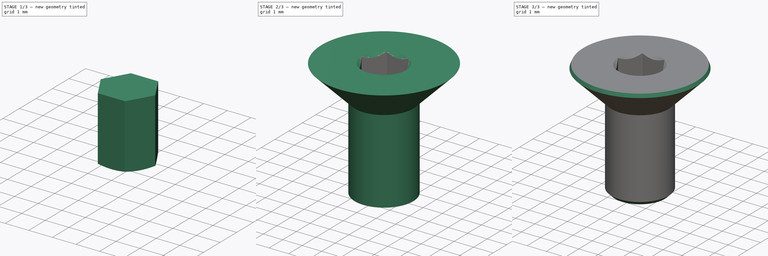
[diagram: build sequence overview — one tinted view per stage of 3, left to right]
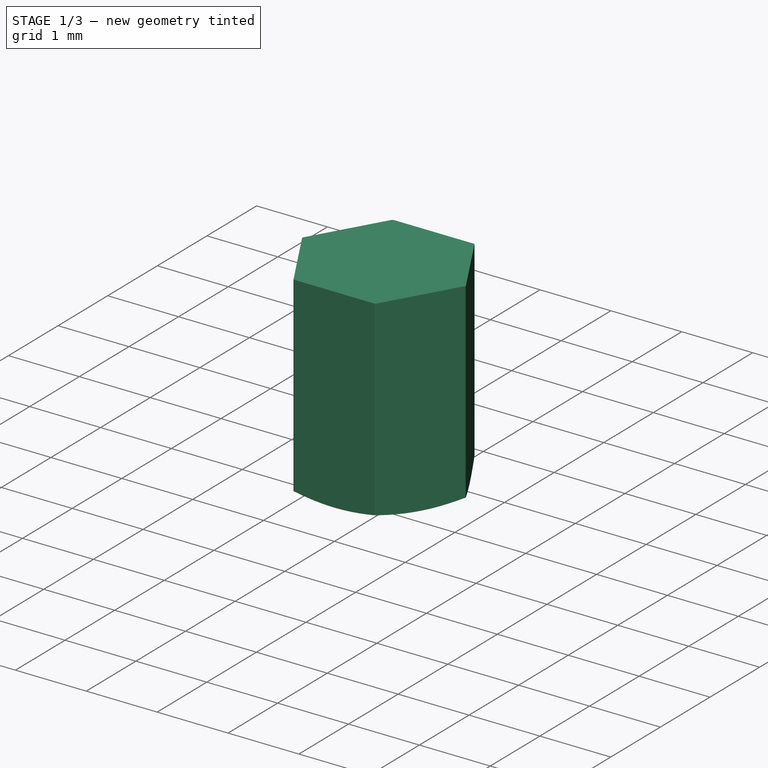
[diagram: stage 1 of 3 — iso view after this stage's code; geometry added in this stage tinted green]
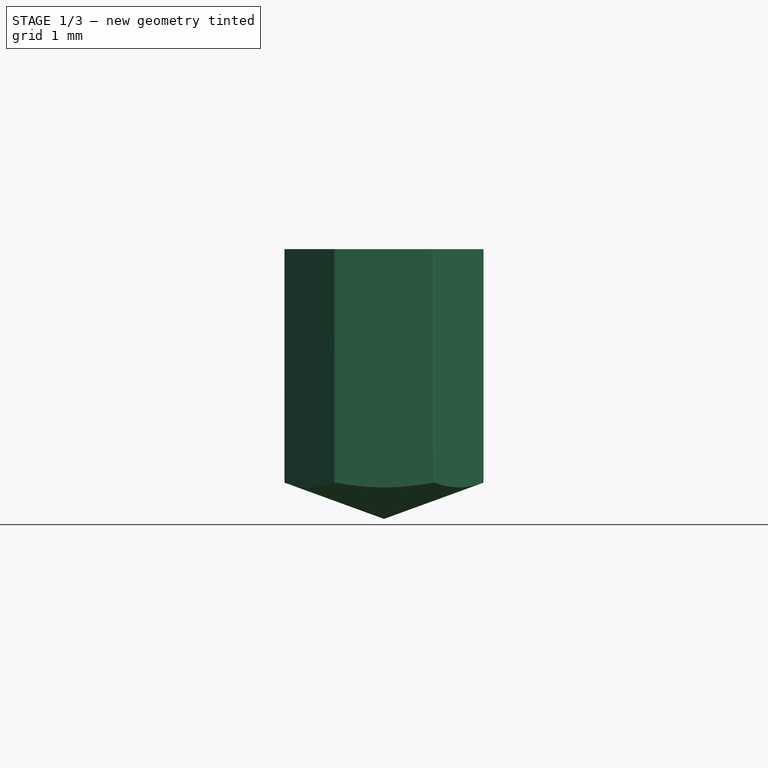
[diagram: stage 1 of 3 — front view after this stage's code; geometry added in this stage tinted green]
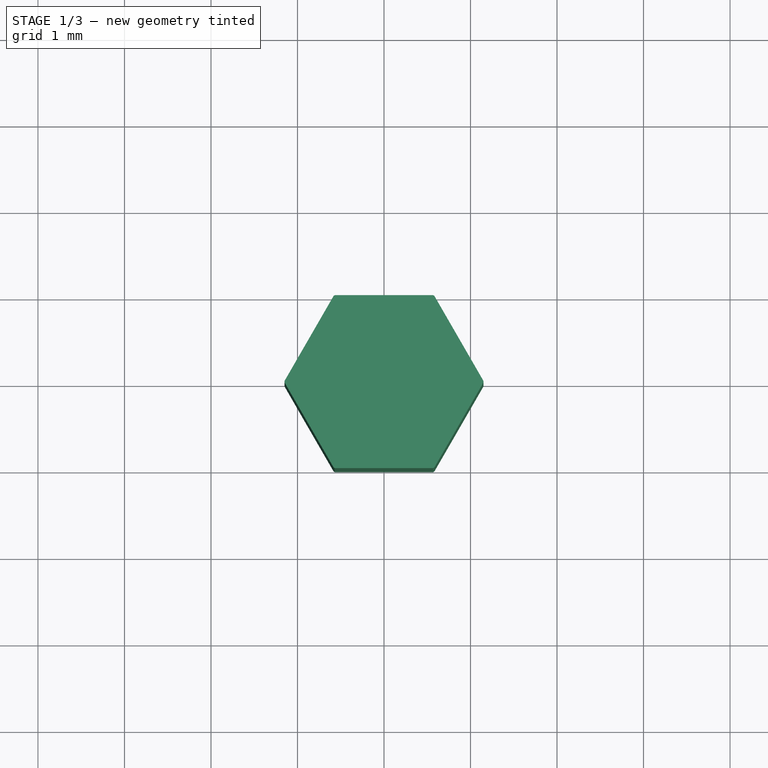
[diagram: stage 1 of 3 — top view after this stage's code; geometry added in this stage tinted green]
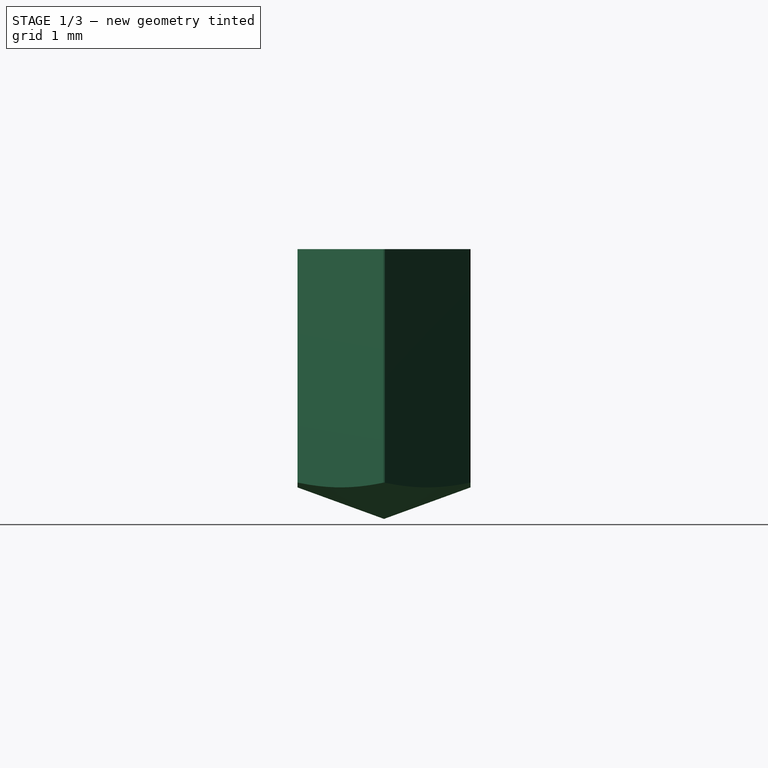
[diagram: stage 1 of 3 — right view after this stage's code; geometry added in this stage tinted green]
FCSTD DOCUMENT  (FreeCAD 0.14R3702 (Git))
Label: ISO10642_Hex_Socket_Countersunk_Head_Screw_M3x6
License: CC-BY 3.0
LicenseURL: http://creativecommons.org/licenses/by/3.0/
objects: Sketcher::SketchObject×3, PartDesign::Revolution×2, PartDesign::Pocket×1, Part::Cut×1, PartDesign::Chamfer×1, Part::Chamfer×1
note: 12 computed .brp shape members not serialized (recipe doc carries the construction recipe); baked Part::Feature solids carry a one-line shape summary decoded from their .brp

FEATURE [Sketcher::SketchObject] Sketch003  label="Sketch002"
  Placement = pos=(0,0,0) rot=(1,0,0;1.5708rad)
  sketch-geometry (4):
    g0: LineSegment StartX=0 StartY=-2.11857 StartZ=0 EndX=1.15 EndY=-1.7 EndZ=0
    g1: LineSegment StartX=1.15 StartY=-1.7 StartZ=0 EndX=1.15 EndY=1 EndZ=0
    g2: LineSegment StartX=1.15 StartY=1 StartZ=0 EndX=0 EndY=1 EndZ=0
    g3: LineSegment StartX=0 StartY=1 StartZ=0 EndX=0 EndY=-2.11857 EndZ=0
  constraints (12):
    c: Coincident(g0,g1)
    c: Vertical(g1)
    c: Coincident(g1,g2)
    c: Horizontal(g2)
    c: Coincident(g2,g3)
    c: Vertical(g3)
    c: Coincident(g0,g3)
    c: DistanceX(g2) = -1.15
    c: PointOnObject(g0,g-2)
    c: Angle(g0,g3) = 1.22173
    c: DistanceY(g-1,g2) = 1
    c: DistanceY(g-1,g0) = -1.7
FEATURE [PartDesign::Revolution] Revolution001
  Angle = 360
  Axis = (0,0,1)
  Base = (0,0,0)
  Placement = pos=(0,0,0) rot=(1,0,0;1.5708rad)
  ReferenceAxis = -> Sketch003 [V_Axis]
  Reversed = true
  Sketch = -> Sketch003
FEATURE [Sketcher::SketchObject] Sketch001  label="Hexagon"
  ExternalGeometry = -> [Revolution001]
  Placement = pos=(0,0,1) rot=(0,0,1;3.14159rad)
  Support = -> Revolution001 [Face3]
  sketch-geometry (9):
    g0: LineSegment StartX=-0.57735 StartY=1 StartZ=0 EndX=0.57735 EndY=1 EndZ=0
    g1: LineSegment StartX=0.57735 StartY=1 StartZ=0 EndX=1.1547 EndY=0 EndZ=0
    g2: LineSegment StartX=1.1547 StartY=0 StartZ=0 EndX=0.57735 EndY=-1 EndZ=0
    g3: LineSegment StartX=0.57735 StartY=-1 StartZ=0 EndX=-0.57735 EndY=-1 EndZ=0
    g4: LineSegment StartX=-0.57735 StartY=-1 StartZ=0 EndX=-1.1547 EndY=0 EndZ=0
    g5: LineSegment StartX=-1.1547 StartY=0 StartZ=0 EndX=-0.57735 EndY=1 EndZ=0
    g6: Circle [constr] CenterX=0 CenterY=0 CenterZ=0 NormalX=0 NormalY=0 NormalZ=1 Radius=1.1547
    g7: Circle CenterX=0 CenterY=0 CenterZ=0 NormalX=0 NormalY=0 NormalZ=1 Radius=2.15
    g8: LineSegment [constr] StartX=0 StartY=2.15 StartZ=0 EndX=0 EndY=1.15 EndZ=0
  constraints (26):
    c: Horizontal(g0)
    c: Coincident(g0,g1)
    c: Coincident(g1,g2)
    c: Coincident(g2,g3)
    c: Horizontal(g3)
    c: Coincident(g3,g4)
    c: Coincident(g4,g5)
    c: Coincident(g5,g0)
    c: Equal(g5,g0)
    c: Equal(g0,g4)
    c: Equal(g4,g3)
    c: Equal(g3,g2)
    c: Equal(g2,g1)
    c: PointOnObject(g0,g6)
    c: PointOnObject(g2,g6)
    c: PointOnObject(g1,g6)
    c: PointOnObject(g4,g6)
    c: PointOnObject(g0,g6)
    c: DistanceY(g3,g0) = 2
    c: Coincident(g6,g-1)
    c: Coincident(g7,g-1)
    c: Vertical(g8)
    c: PointOnObject(g8,g-3)
    c: PointOnObject(g8,g7)
    c: PointOnObject(g8,g-2)
    c: DistanceY(g8) = -1
FEATURE [PartDesign::Pocket] Pocket
  Length = 5
  Placement = pos=(0,0,0) rot=(1,0,0;1.5708rad)
  Sketch = -> Sketch001
  Type = 1
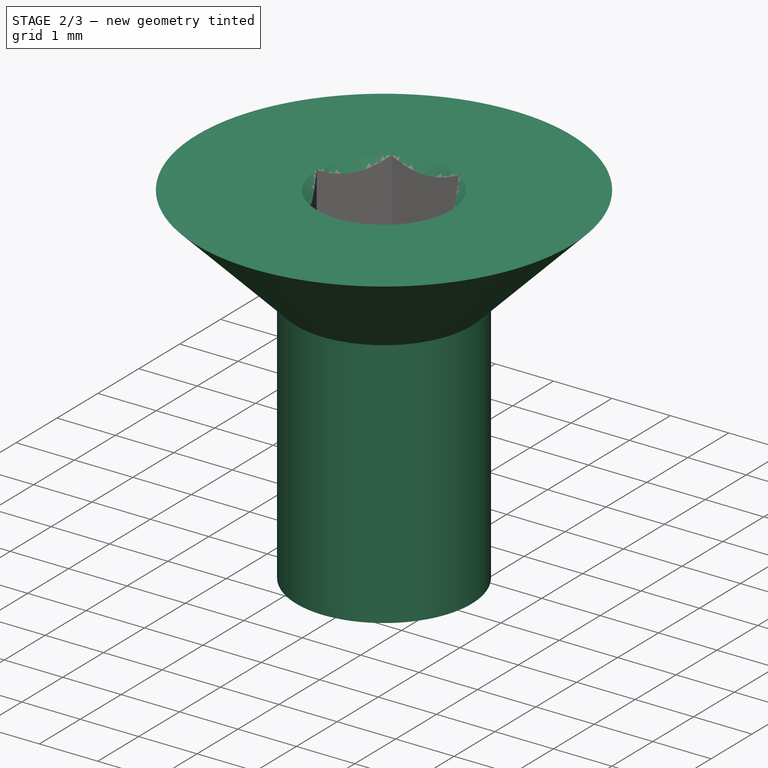
[diagram: stage 2 of 3 — iso view after this stage's code; geometry added in this stage tinted green]
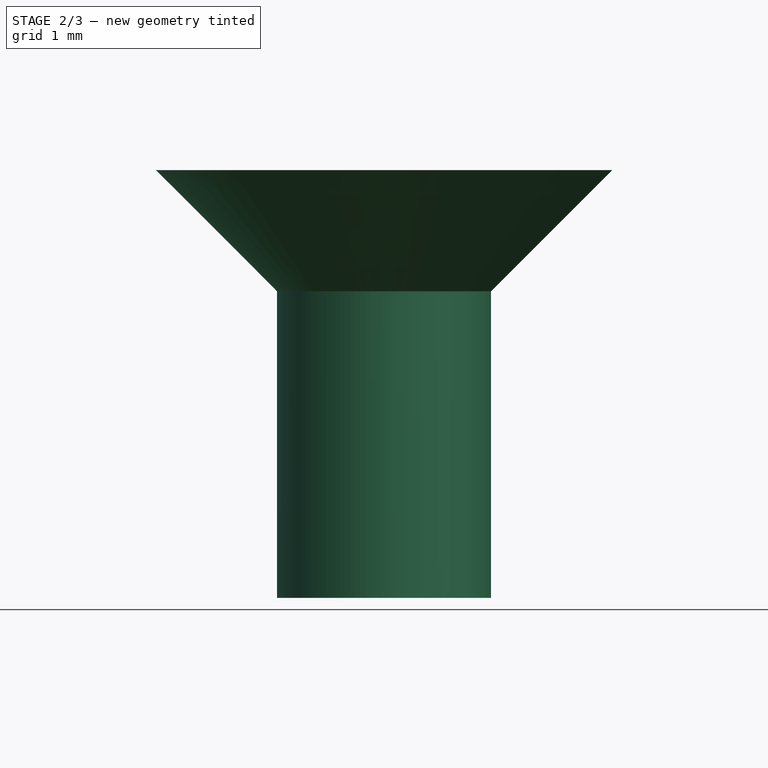
[diagram: stage 2 of 3 — front view after this stage's code; geometry added in this stage tinted green]
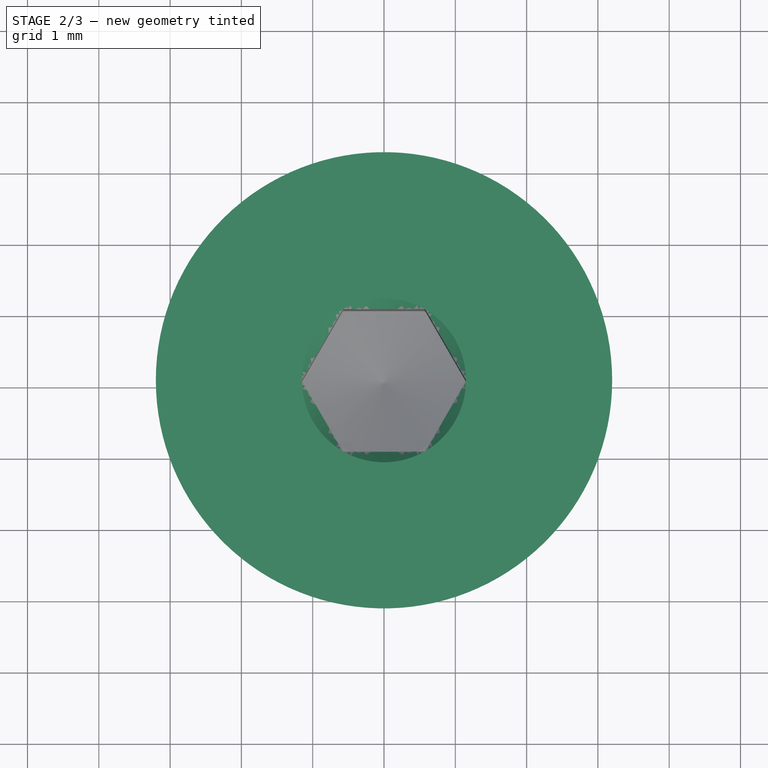
[diagram: stage 2 of 3 — top view after this stage's code; geometry added in this stage tinted green]
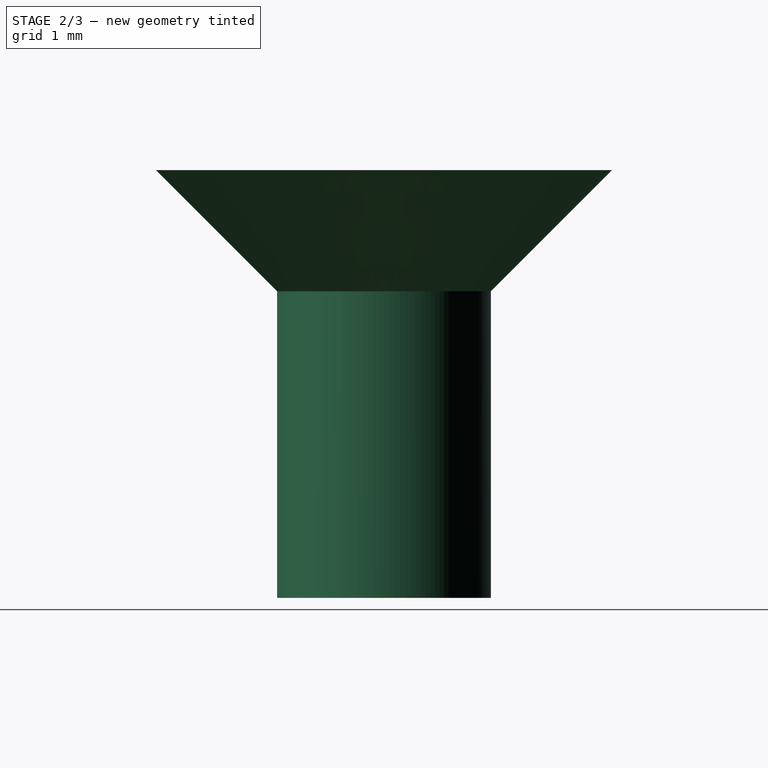
[diagram: stage 2 of 3 — right view after this stage's code; geometry added in this stage tinted green]
FEATURE [Sketcher::SketchObject] Sketch
  Placement = pos=(0,0,0) rot=(1,0,0;1.5708rad)
  sketch-geometry (6):
    g0: LineSegment StartX=1.15 StartY=0 StartZ=0 EndX=3.2 EndY=0 EndZ=0
    g1: LineSegment StartX=3.2 StartY=0 StartZ=0 EndX=1.5 EndY=-1.7 EndZ=0
    g2: LineSegment StartX=1.5 StartY=-1.7 StartZ=0 EndX=1.5 EndY=-6 EndZ=0
    g3: LineSegment StartX=1.5 StartY=-6 StartZ=0 EndX=0 EndY=-6 EndZ=0
    g4: LineSegment StartX=0 StartY=-6 StartZ=0 EndX=0 EndY=-1.15 EndZ=0
    g5: LineSegment StartX=0 StartY=-1.15 StartZ=0 EndX=1.15 EndY=0 EndZ=0
  constraints (18):
    c: Horizontal(g0)
    c: Coincident(g0,g1)
    c: Vertical(g2)
    c: Coincident(g2,g3)
    c: Horizontal(g3)
    c: Coincident(g3,g4)
    c: Vertical(g4)
    c: Coincident(g0,g5)
    c: DistanceX(g3) = -1.5
    c: Angle(g5,g0) = 2.35619
    c: DistanceX(g0,g4) = -1.15
    c: PointOnObject(g4,g-2)
    c: Coincident(g5,g4)
    c: Coincident(g2,g1)
    c: PointOnObject(g0,g-1)
    c: DistanceY(g0,g2) = -6
    c: DistanceY(g1) = -1.7
    c: Angle(g1,g-2) = 0.785398
FEATURE [PartDesign::Revolution] Revolution
  Angle = 360
  Axis = (0,0,1)
  Base = (0,0,0)
  Placement = pos=(0,0,0) rot=(1,0,0;1.5708rad)
  ReferenceAxis = -> Sketch [V_Axis]
  Reversed = true
  Sketch = -> Sketch
FEATURE [Part::Cut] Cut
  Base = -> Revolution
  Tool = -> Pocket
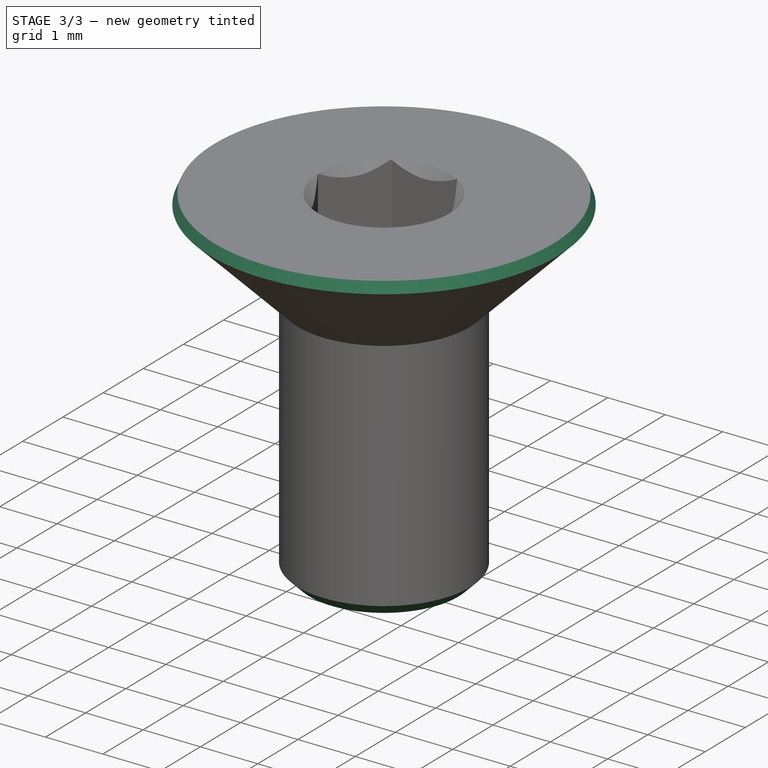
[diagram: stage 3 of 3 — iso view after this stage's code; geometry added in this stage tinted green]
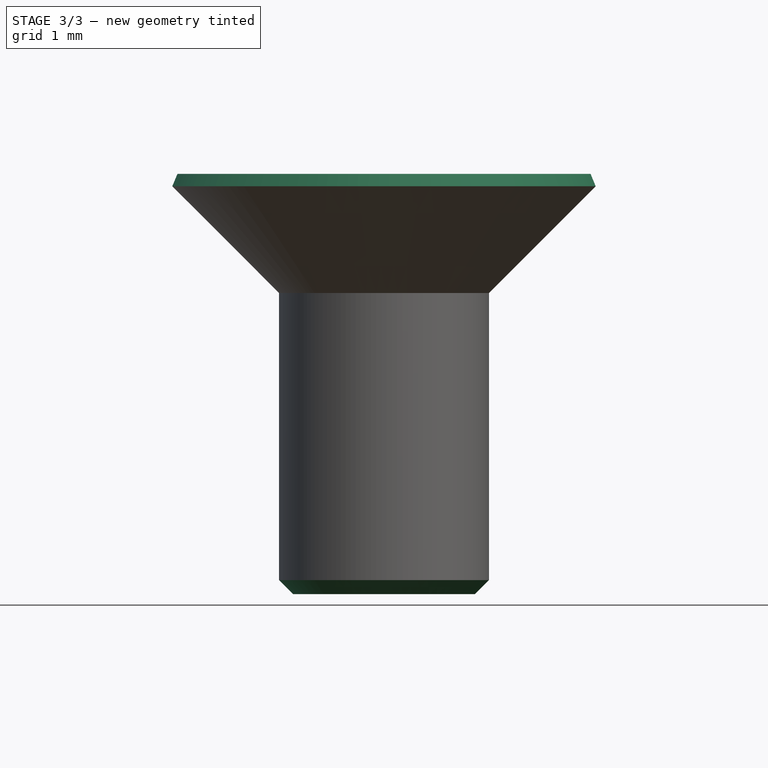
[diagram: stage 3 of 3 — front view after this stage's code; geometry added in this stage tinted green]
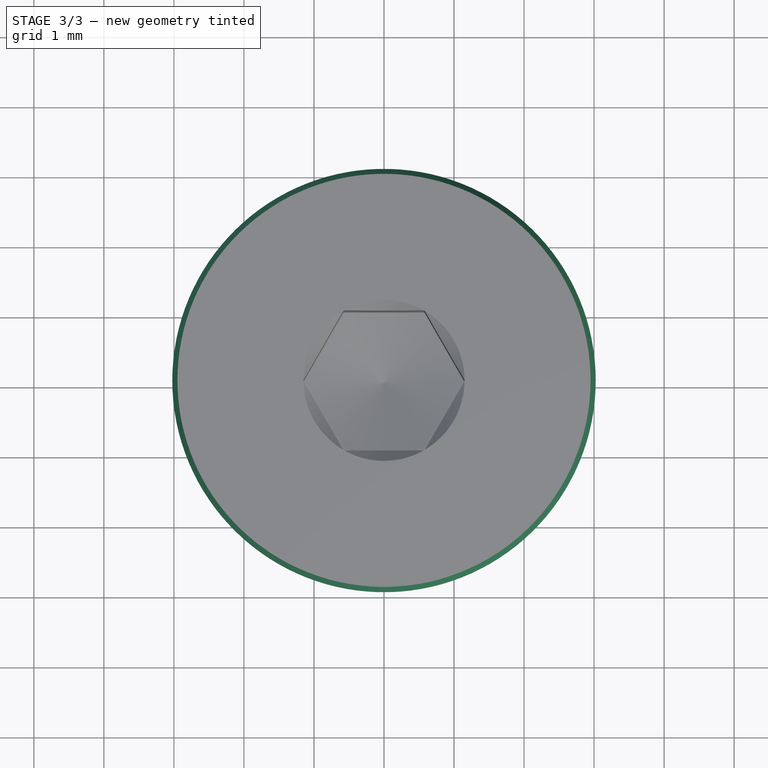
[diagram: stage 3 of 3 — top view after this stage's code; geometry added in this stage tinted green]
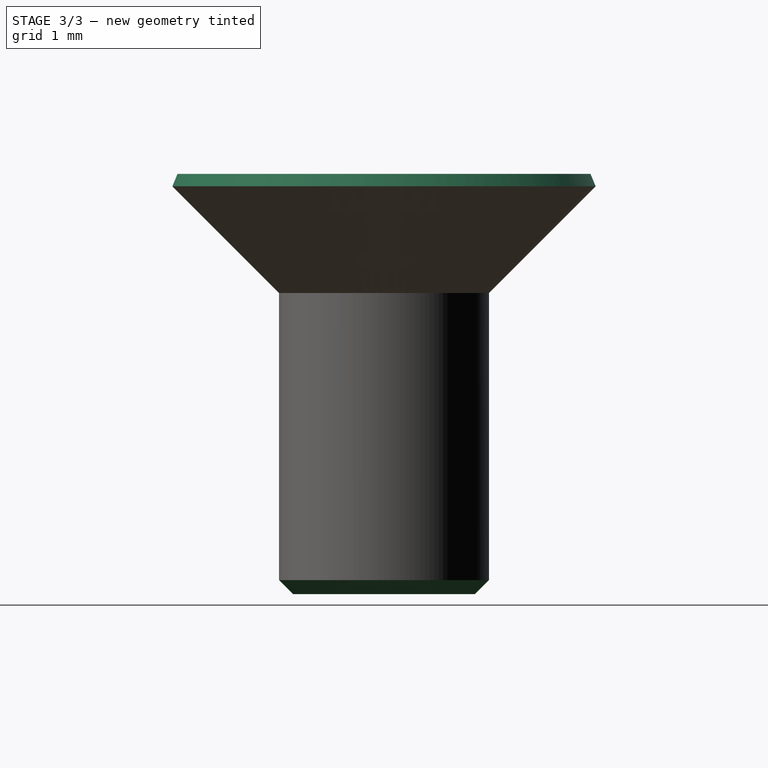
[diagram: stage 3 of 3 — right view after this stage's code; geometry added in this stage tinted green]
FEATURE [PartDesign::Chamfer] Chamfer
  Base = -> Cut [Edge1]
  Size = 0.25
FEATURE [Part::Chamfer] Chamfer001
  Base = -> Chamfer
  Edges = 1 edges r=0.2: [Edge52]
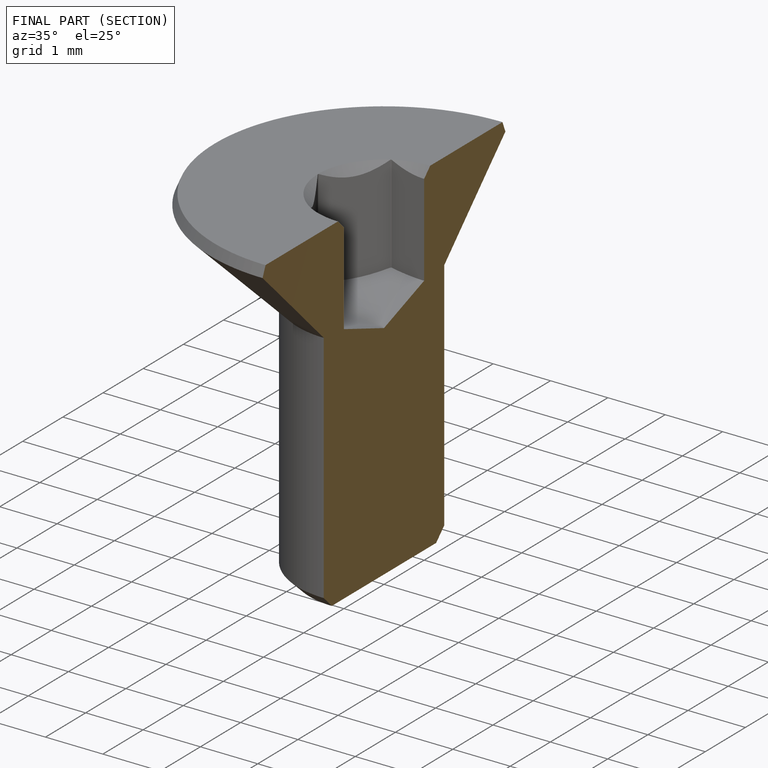
[diagram: finished part — half-section view (interior)]
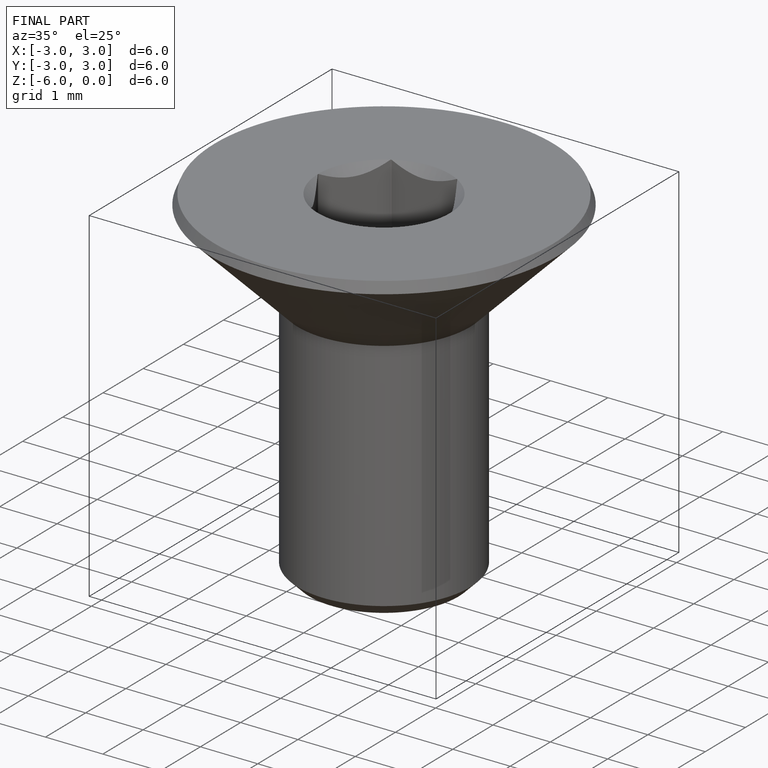
[diagram: finished part — iso view with bounding-box wireframe]
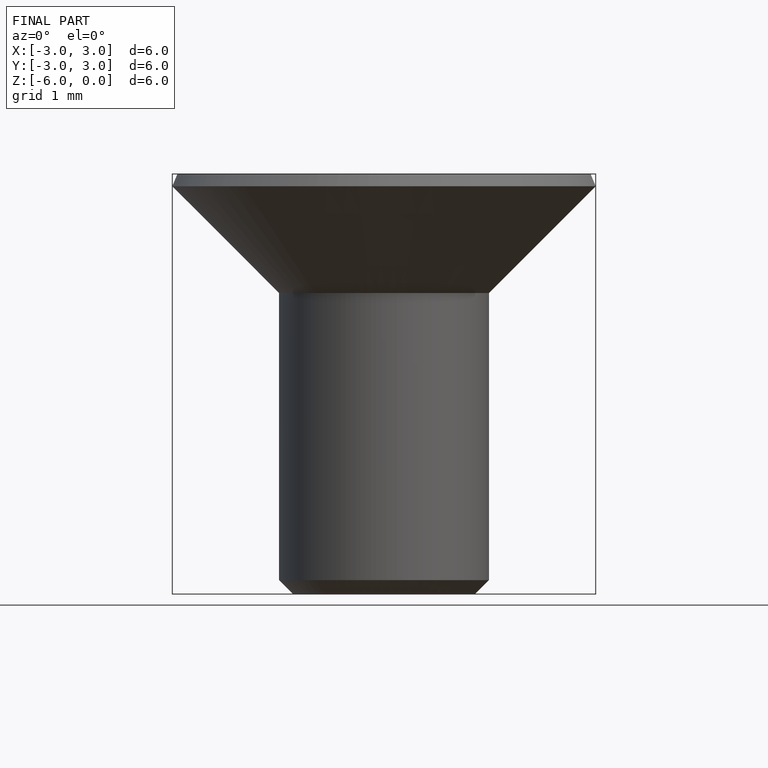
[diagram: finished part — front view with bounding-box wireframe]
